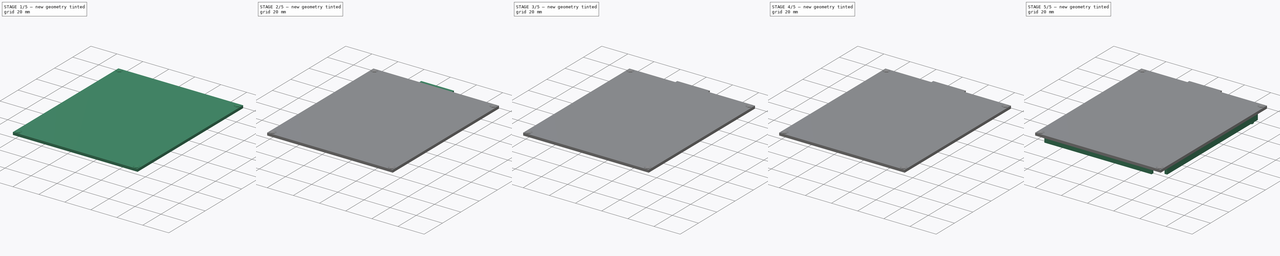
[diagram: build sequence overview — one tinted view per stage of 5, left to right]
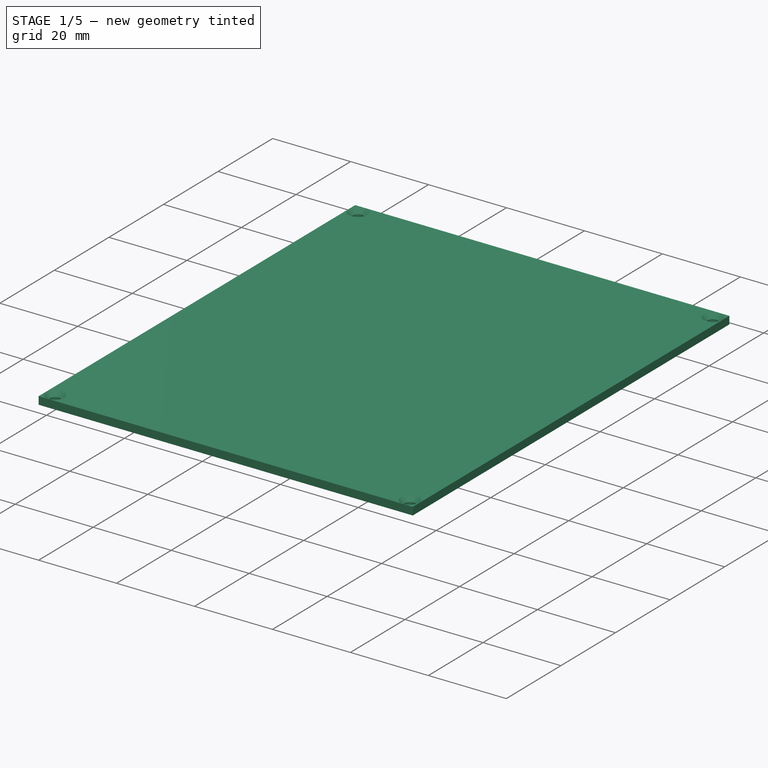
[diagram: stage 1 of 5 — iso view after this stage's code; geometry added in this stage tinted green]
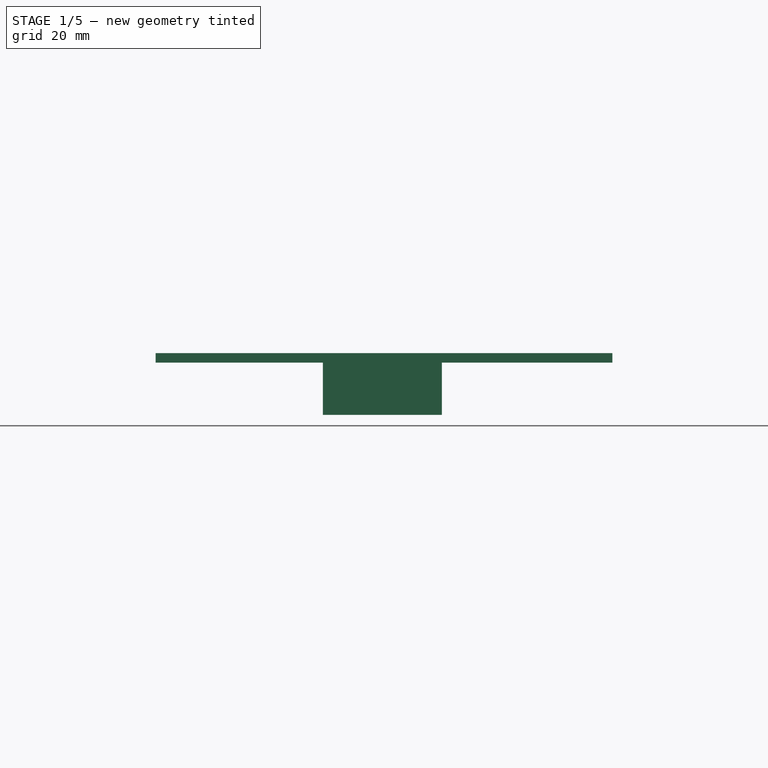
[diagram: stage 1 of 5 — front view after this stage's code; geometry added in this stage tinted green]
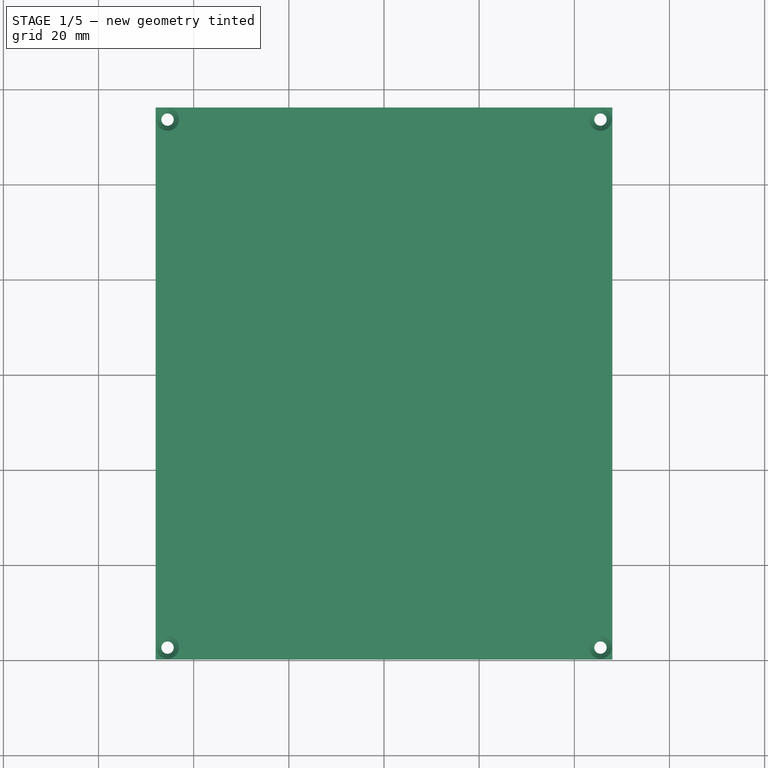
[diagram: stage 1 of 5 — top view after this stage's code; geometry added in this stage tinted green]
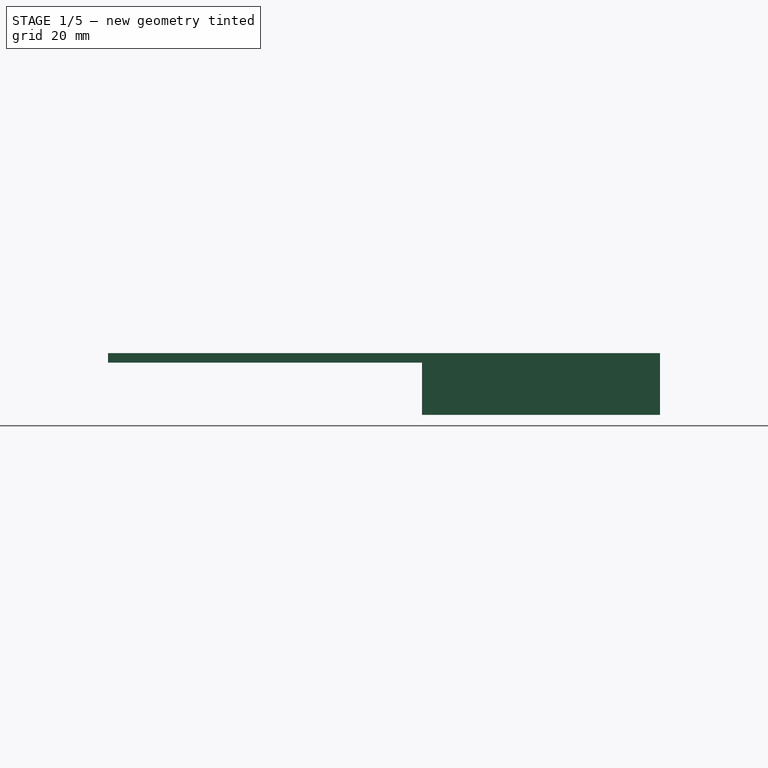
[diagram: stage 1 of 5 — right view after this stage's code; geometry added in this stage tinted green]
FCSTD DOCUMENT  (FreeCAD 0.17R13528 (Git))
Label: macro_keys-BOTTOM_V2
License: All rights reserved
LicenseURL: http://en.wikipedia.org/wiki/All_rights_reserved
objects: Sketcher::SketchObject×17, PartDesign::Pad×12, PartDesign::Pocket×5, PartDesign::Chamfer×1, PartDesign::Body×1
note: 53 computed .brp shape members not serialized (recipe doc carries the construction recipe); baked Part::Feature solids carry a one-line shape summary decoded from their .brp

FEATURE [Sketcher::SketchObject] Sketch
  MapMode = 5
  Support = -> [XY_Plane]
  sketch-geometry (4):
    g0: LineSegment StartX=-48 StartY=116 StartZ=0 EndX=48 EndY=116 EndZ=0
    g1: LineSegment StartX=48 StartY=116 StartZ=0 EndX=48 EndY=0 EndZ=0
    g2: LineSegment StartX=48 StartY=0 StartZ=0 EndX=-48 EndY=0 EndZ=0
    g3: LineSegment StartX=-48 StartY=0 StartZ=0 EndX=-48 EndY=116 EndZ=0
  constraints (12):
    c: Coincident(g0,g1)
    c: Coincident(g1,g2)
    c: Coincident(g2,g3)
    c: Coincident(g3,g0)
    c: Horizontal(g0)
    c: Horizontal(g2)
    c: Vertical(g1)
    c: Vertical(g3)
    c: DistanceX(g0,g0) = 96
    c: DistanceX(g2,g-1) = 48
    c: DistanceY(g3,g3) = 116
    c: DistanceY(g2,g-1) = 0
FEATURE [PartDesign::Pad] Pad
  Length = 2
  Length2 = 100
  Profile = -> Sketch
  Type = 0
FEATURE [Sketcher::SketchObject] Sketch001
  ExternalGeometry = -> [Pad]
  MapMode = 5
  Placement = pos=(0,0,2) rot=(0,0,1;0rad)
  Support = -> [Pad]
  sketch-geometry (4):
    g0: Circle CenterX=-45.5 CenterY=113.5 CenterZ=0 NormalX=0 NormalY=0 NormalZ=1 AngleXU=0 Radius=1.3
    g1: Circle CenterX=45.5 CenterY=113.5 CenterZ=0 NormalX=0 NormalY=0 NormalZ=1 AngleXU=0 Radius=1.3
    g2: Circle CenterX=45.5 CenterY=2.5 CenterZ=0 NormalX=0 NormalY=0 NormalZ=1 AngleXU=0 Radius=1.3
    g3: Circle CenterX=-45.5 CenterY=2.5 CenterZ=0 NormalX=0 NormalY=0 NormalZ=1 AngleXU=0 Radius=1.3
  constraints (12):
    c: DistanceY(g0,g-4) = 2.5
    c: DistanceY(g1,g-6) = 2.5
    c: DistanceY(g-5,g3) = 2.5
    c: DistanceY(g-6,g2) = 2.5
    c: DistanceX(g-5,g3) = 2.5
    c: DistanceX(g2,g-6) = 2.5
    c: DistanceX(g1,g-6) = 2.5
    c: DistanceX(g-4,g0) = 2.5
    c: Radius(g0) = 1.3
    c: Radius(g1) = 1.3
    c: Radius(g2) = 1.3
    c: Radius(g3) = 1.3
FEATURE [PartDesign::Pocket] Pocket
  BaseFeature = -> Pad
  Length = 5
  Length2 = 100
  Profile = -> Sketch001
  Type = 1
FEATURE [PartDesign::Chamfer] Chamfer
  Base = -> Pocket [Edge18,Edge19,Edge20,Edge17]
  BaseFeature = -> Pocket
  Size = 1.1
FEATURE [Sketcher::SketchObject] Sketch003
  MapMode = 5
  Placement = pos=(0,0,0) rot=(1,0,0;3.14159rad)
  sketch-geometry (4):
    g0: LineSegment StartX=12.1547 StartY=-116 StartZ=0 EndX=-12.8453 EndY=-116 EndZ=0
    g1: LineSegment StartX=-12.8453 StartY=-116 StartZ=0 EndX=-12.8453 EndY=-66 EndZ=0
    g2: LineSegment StartX=-12.8453 StartY=-66 StartZ=0 EndX=12.1547 EndY=-66 EndZ=0
    g3: LineSegment StartX=12.1547 StartY=-66 StartZ=0 EndX=12.1547 EndY=-116 EndZ=0
  constraints (10):
    c: Coincident(g0,g1)
    c: Coincident(g1,g2)
    c: Coincident(g2,g3)
    c: Coincident(g3,g0)
    c: Horizontal(g0)
    c: Horizontal(g2)
    c: Vertical(g1)
    c: Vertical(g3)
    c: DistanceY(g3,g3) = 50
    c: DistanceX(g2,g2) = 25
FEATURE [PartDesign::Pad] Pad001
  BaseFeature = -> Chamfer
  Length = 11
  Length2 = 100
  Profile = -> Sketch003
  Type = 0
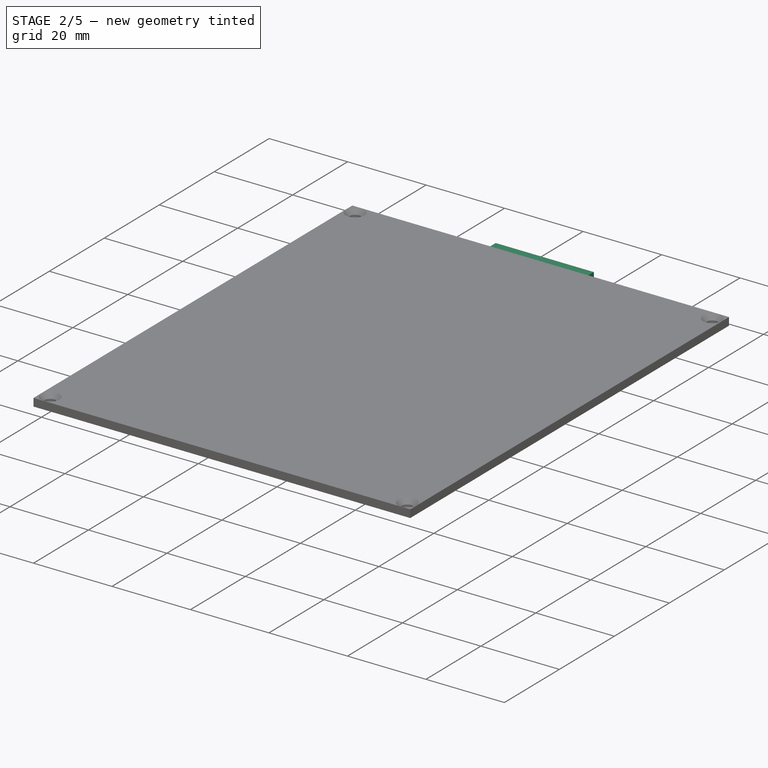
[diagram: stage 2 of 5 — iso view after this stage's code; geometry added in this stage tinted green]
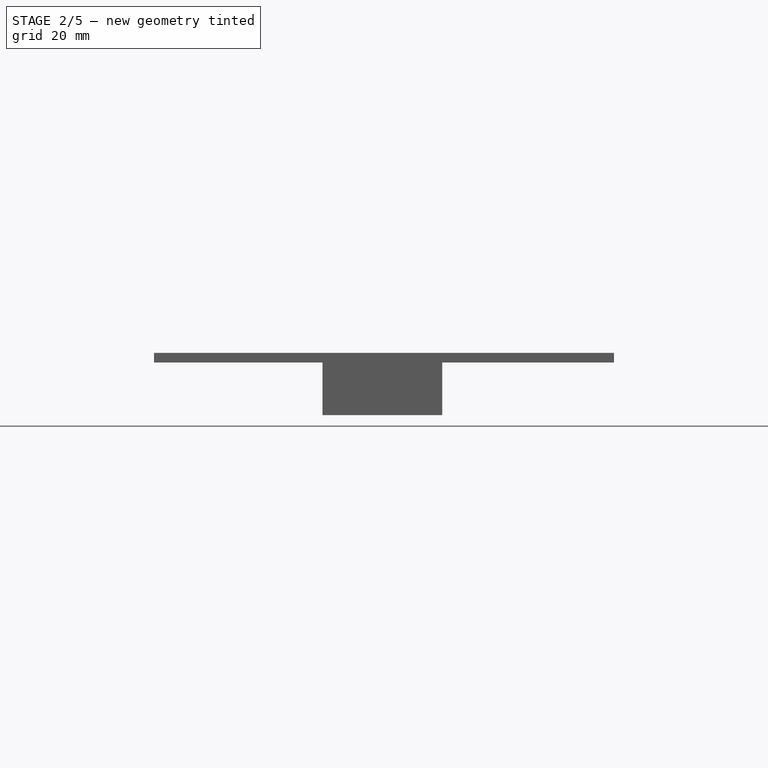
[diagram: stage 2 of 5 — front view after this stage's code; geometry added in this stage tinted green]
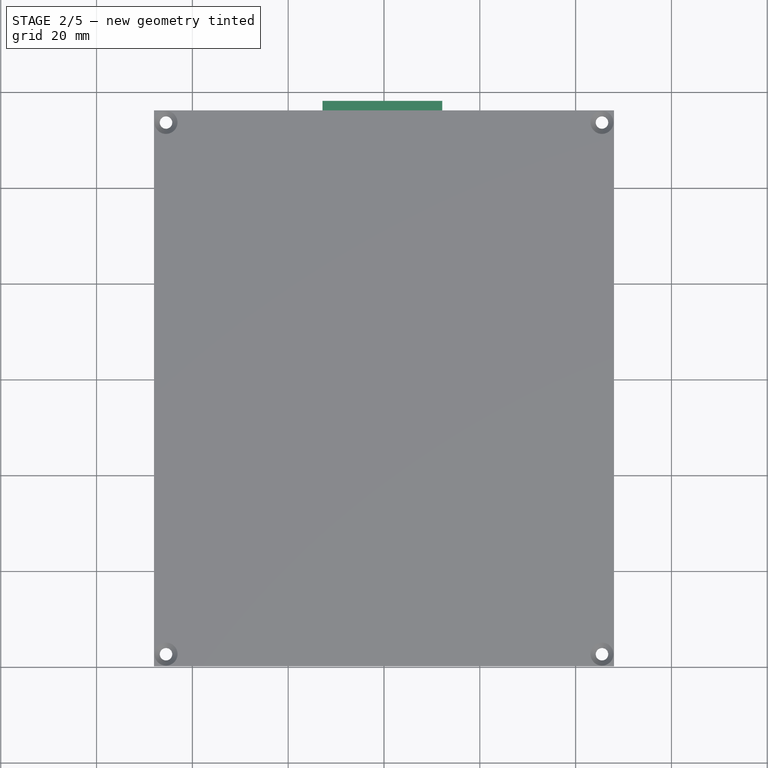
[diagram: stage 2 of 5 — top view after this stage's code; geometry added in this stage tinted green]
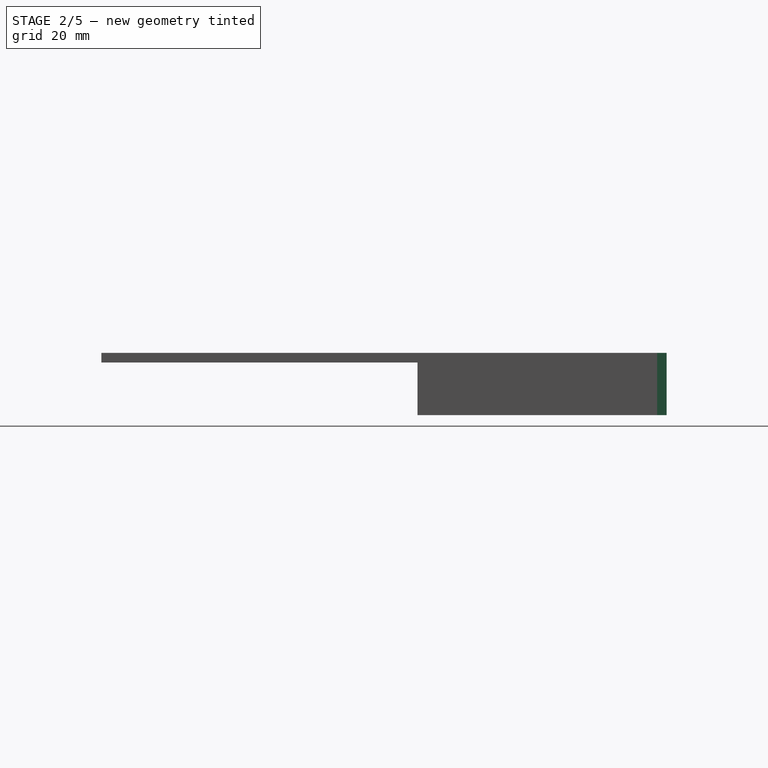
[diagram: stage 2 of 5 — right view after this stage's code; geometry added in this stage tinted green]
FEATURE [Sketcher::SketchObject] Sketch004
  ExternalGeometry = -> [Pad001]
  MapMode = 5
  Placement = pos=(0,116,0) rot=(0,0.707107,0.707107;3.14159rad)
  Support = -> [Pad001]
  sketch-geometry (4):
    g0: LineSegment StartX=-12.1547 StartY=-11 StartZ=0 EndX=12.8453 EndY=-11 EndZ=0
    g1: LineSegment StartX=12.8453 StartY=-11 StartZ=0 EndX=12.8453 EndY=2 EndZ=0
    g2: LineSegment StartX=12.8453 StartY=2 StartZ=0 EndX=-12.1547 EndY=2 EndZ=0
    g3: LineSegment StartX=-12.1547 StartY=2 StartZ=0 EndX=-12.1547 EndY=-11 EndZ=0
  constraints (11):
    c: Coincident(g0,g1)
    c: Coincident(g1,g2)
    c: Coincident(g2,g3)
    c: Coincident(g3,g0)
    c: Horizontal(g0)
    c: Horizontal(g2)
    c: Vertical(g1)
    c: Vertical(g3)
    c: PointOnObject(g1,g-3)
    c: Coincident(g0,g-4)
    c: Coincident(g0,g-4)
FEATURE [PartDesign::Pad] Pad002
  BaseFeature = -> Pad001
  Length = 2
  Length2 = 100
  Profile = -> Sketch004
  Type = 0
FEATURE [Sketcher::SketchObject] Sketch005
  ExternalGeometry = -> [Pad002]
  MapMode = 5
  Placement = pos=(0,0,-11) rot=(1,0,0;3.14159rad)
  Support = -> [Pad002]
  sketch-geometry (20):
    g0: LineSegment StartX=-9.75 StartY=-69 StartZ=0 EndX=-9.75 EndY=-104 EndZ=0
    g1: LineSegment StartX=-9.75 StartY=-104 StartZ=0 EndX=-4 EndY=-104 EndZ=0
    g2: LineSegment StartX=-4 StartY=-104 StartZ=0 EndX=-4 EndY=-106 EndZ=0
    g3: LineSegment StartX=-4 StartY=-106 StartZ=0 EndX=-6.25 EndY=-106 EndZ=0
    g4: LineSegment StartX=-6.25 StartY=-106 StartZ=0 EndX=-6.25 EndY=-118 EndZ=0
    g5: LineSegment StartX=-6.25 StartY=-118 StartZ=0 EndX=6.25 EndY=-118 EndZ=0
    g6: LineSegment StartX=6.25 StartY=-118 StartZ=0 EndX=6.25 EndY=-106 EndZ=0
    g7: LineSegment StartX=6.25 StartY=-106 StartZ=0 EndX=4 EndY=-106 EndZ=0
    g8: LineSegment StartX=4 StartY=-106 StartZ=0 EndX=4 EndY=-104 EndZ=0
    g9: LineSegment StartX=4 StartY=-104 StartZ=0 EndX=9.75 EndY=-104 EndZ=0
    g10: LineSegment StartX=9.75 StartY=-104 StartZ=0 EndX=9.75 EndY=-69 EndZ=0
    g11: LineSegment StartX=9.75 StartY=-69 StartZ=0 EndX=5.5 EndY=-69 EndZ=0
    g12: LineSegment StartX=5.5 StartY=-69 StartZ=0 EndX=5.5 EndY=-70.3 EndZ=0
    g13: LineSegment StartX=5.5 StartY=-70.3 StartZ=0 EndX=3.5 EndY=-70.3 EndZ=0
    g14: LineSegment StartX=3.5 StartY=-70.3 StartZ=0 EndX=3.5 EndY=-69 EndZ=0
    g15: LineSegment StartX=3.5 StartY=-69 StartZ=0 EndX=-3.5 EndY=-69 EndZ=0
    g16: LineSegment StartX=-3.5 StartY=-69 StartZ=0 EndX=-3.5 EndY=-70.3 EndZ=0
    g17: LineSegment StartX=-3.5 StartY=-70.3 StartZ=0 EndX=-5.5 EndY=-70.3 EndZ=0
    g18: LineSegment StartX=-5.5 StartY=-70.3 StartZ=0 EndX=-5.5 EndY=-69 EndZ=0
    g19: LineSegment StartX=-5.5 StartY=-69 StartZ=0 EndX=-9.75 EndY=-69 EndZ=0
  constraints (59):
    c: Vertical(g0)
    c: Coincident(g1,g0)
    c: Coincident(g2,g1)
    c: Vertical(g2)
    c: Horizontal(g1)
    c: Coincident(g3,g2)
    c: Horizontal(g3)
    c: Coincident(g4,g3)
    c: Vertical(g4)
    c: Coincident(g5,g4)
    c: Horizontal(g5)
    c: Coincident(g6,g5)
    c: Vertical(g6)
    c: Coincident(g7,g6)
    c: Horizontal(g7)
    c: Coincident(g8,g7)
    c: Vertical(g8)
    c: Coincident(g9,g8)
    c: Horizontal(g9)
    c: Coincident(g10,g9)
    c: Vertical(g10)
    c: DistanceX(g0,g10) = 19.5
    c: Symmetric(g0,g10,g-2)
    c: DistanceY(g0,g0) = 35
    c: DistanceY(g0,g-5) = 3
    c: Equal(g0,g10)
    c: DistanceX(g1,g8) = 8
    c: Symmetric(g8,g1,g-2)
    c: DistanceY(g2,g2) = 2
    c: Equal(g2,g8)
    c: DistanceX(g5,g5) = 12.5
    c: Symmetric(g5,g4,g-2)
    c: PointOnObject(g4,g-6)
    c: Coincident(g11,g10)
    c: Horizontal(g11)
    c: Coincident(g12,g11)
    c: Vertical(g12)
    c: Coincident(g13,g12)
    c: Horizontal(g13)
    c: Coincident(g14,g13)
    c: Vertical(g14)
    c: Coincident(g15,g14)
    c: Horizontal(g15)
    c: Coincident(g16,g15)
    c: Vertical(g16)
    c: Coincident(g17,g16)
    c: Horizontal(g17)
    c: Coincident(g18,g17)
    c: Vertical(g18)
    c: Coincident(g19,g18)
    c: Coincident(g19,g0)
    c: Horizontal(g19)
    c: DistanceX(g15,g15) = 7
    c: Symmetric(g14,g15,g-2)
    c: DistanceX(g17,g17) = 2
    c: DistanceX(g13,g13) = 2
    c: DistanceY(g18,g18) = 1.3
    c: Equal(g18,g14)
    c: DistanceY(g10,g14) = 0
FEATURE [PartDesign::Pocket] Pocket001
  BaseFeature = -> Pad002
  Length = 8.8
  Length2 = 100
  Profile = -> Sketch005
  Type = 0
FEATURE [Sketcher::SketchObject] Sketch008
  ExternalGeometry = -> [Pocket001]
  MapMode = 5
  Placement = pos=(0,0,-2.2) rot=(1,0,0;3.14159rad)
  Support = -> [Pocket001]
  sketch-geometry (4):
    g0: LineSegment StartX=-6.25 StartY=-106 StartZ=0 EndX=6.25 EndY=-106 EndZ=0
    g1: LineSegment StartX=6.25 StartY=-106 StartZ=0 EndX=6.25 EndY=-118 EndZ=0
    g2: LineSegment StartX=6.25 StartY=-118 StartZ=0 EndX=-6.25 EndY=-118 EndZ=0
    g3: LineSegment StartX=-6.25 StartY=-118 StartZ=0 EndX=-6.25 EndY=-106 EndZ=0
  constraints (10):
    c: Coincident(g0,g1)
    c: Coincident(g1,g2)
    c: Coincident(g2,g3)
    c: Coincident(g3,g0)
    c: Horizontal(g0)
    c: Horizontal(g2)
    c: Vertical(g1)
    c: Vertical(g3)
    c: Coincident(g0,g-3)
    c: Coincident(g1,g-4)
FEATURE [PartDesign::Pocket] Pocket004
  BaseFeature = -> Pocket001
  Length = 1.3
  Length2 = 100
  Profile = -> Sketch008
  Type = 0
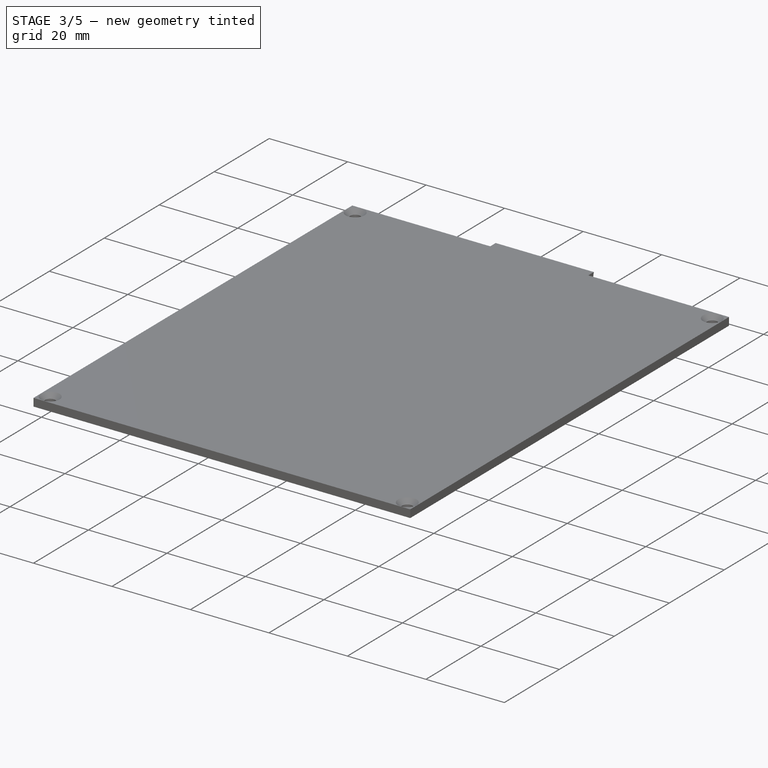
[diagram: stage 3 of 5 — iso view after this stage's code; geometry added in this stage tinted green]
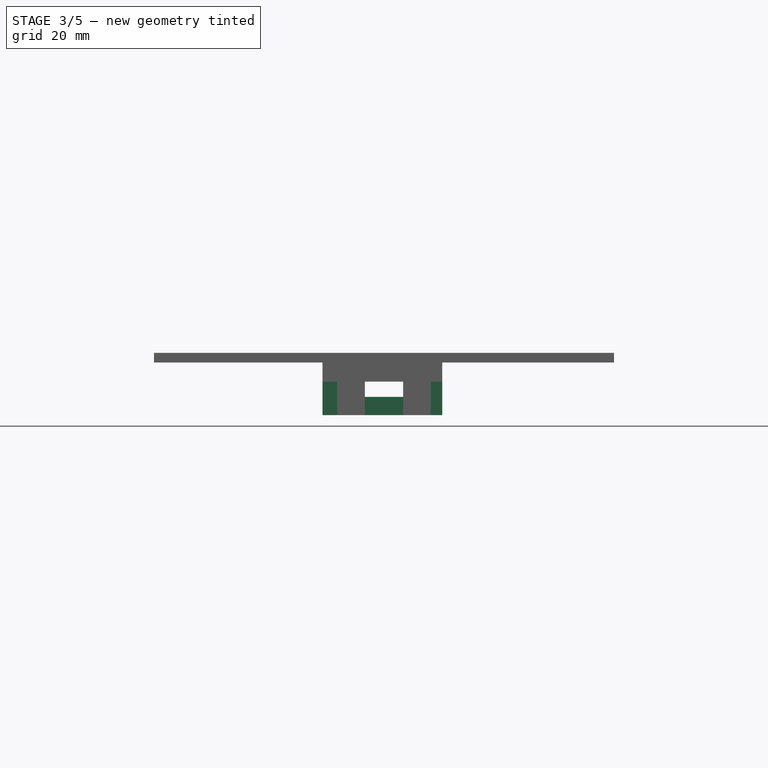
[diagram: stage 3 of 5 — front view after this stage's code; geometry added in this stage tinted green]
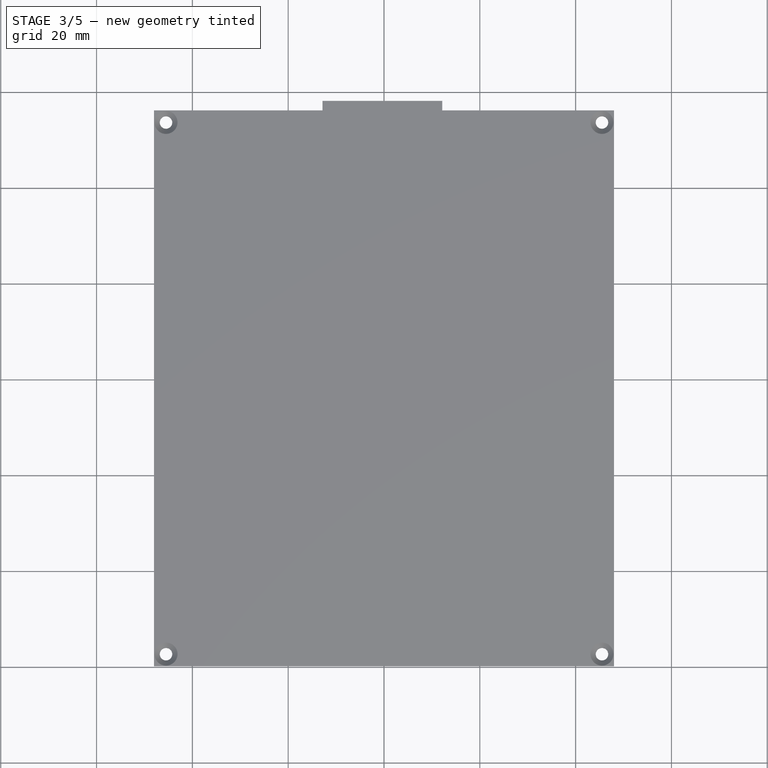
[diagram: stage 3 of 5 — top view after this stage's code; geometry added in this stage tinted green]
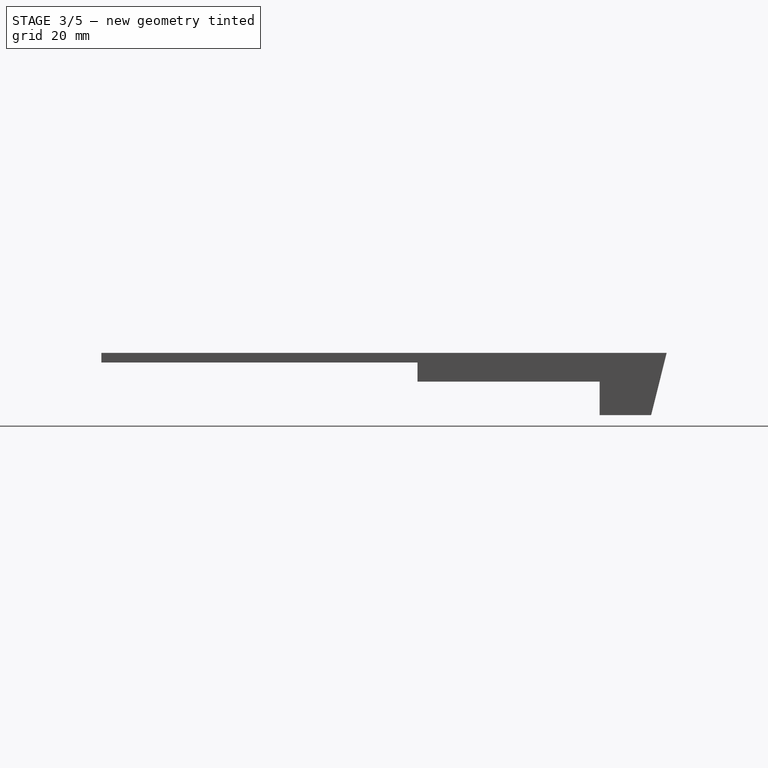
[diagram: stage 3 of 5 — right view after this stage's code; geometry added in this stage tinted green]
FEATURE [Sketcher::SketchObject] Sketch009
  ExternalGeometry = -> [Pocket004]
  MapMode = 5
  Placement = pos=(0,0,-11) rot=(1,0,0;3.14159rad)
  Support = -> [Pocket004]
  sketch-geometry (4):
    g0: LineSegment StartX=18.0821 StartY=-104 StartZ=0 EndX=-19.3692 EndY=-104 EndZ=0
    g1: LineSegment StartX=-19.3692 StartY=-104 StartZ=0 EndX=-19.3692 EndY=-63.8224 EndZ=0
    g2: LineSegment StartX=-19.3692 StartY=-63.8224 StartZ=0 EndX=18.0821 EndY=-63.8224 EndZ=0
    g3: LineSegment StartX=18.0821 StartY=-63.8224 StartZ=0 EndX=18.0821 EndY=-104 EndZ=0
  constraints (9):
    c: Coincident(g0,g1)
    c: Coincident(g1,g2)
    c: Coincident(g2,g3)
    c: Coincident(g3,g0)
    c: Horizontal(g0)
    c: Horizontal(g2)
    c: Vertical(g1)
    c: Vertical(g3)
    c: PointOnObject(g-3,g0)
FEATURE [PartDesign::Pocket] Pocket005
  BaseFeature = -> Pocket004
  Length = 7
  Length2 = 100
  Profile = -> Sketch009
  Type = 0
FEATURE [Sketcher::SketchObject] Sketch010
  ExternalGeometry = -> [Pocket005]
  MapMode = 5
  Placement = pos=(-6.25,0,0) rot=(0.57735,0.57735,0.57735;2.0944rad)
  Support = -> [Pocket005]
  sketch-geometry (4):
    g0: LineSegment StartX=118 StartY=-11 StartZ=0 EndX=106 EndY=-11 EndZ=0
    g1: LineSegment StartX=106 StartY=-11 StartZ=0 EndX=106 EndY=-9.8 EndZ=0
    g2: LineSegment StartX=106 StartY=-9.8 StartZ=0 EndX=118 EndY=-9.8 EndZ=0
    g3: LineSegment StartX=118 StartY=-9.8 StartZ=0 EndX=118 EndY=-11 EndZ=0
  constraints (11):
    c: Coincident(g0,g1)
    c: Coincident(g1,g2)
    c: Coincident(g2,g3)
    c: Coincident(g3,g0)
    c: Horizontal(g0)
    c: Horizontal(g2)
    c: Vertical(g1)
    c: Vertical(g3)
    c: Coincident(g0,g-4)
    c: Coincident(g0,g-3)
    c: DistanceY(g2,g-5) = 8.9
FEATURE [PartDesign::Pad] Pad003
  BaseFeature = -> Pocket005
  Length = 10
  Length2 = 100
  Profile = -> Sketch010
  Type = 2
FEATURE [Sketcher::SketchObject] Sketch011
  ExternalGeometry = -> [Pad003]
  MapMode = 5
  Placement = pos=(-4,0,0) rot=(0.57735,0.57735,0.57735;2.0944rad)
  Support = -> [Pad003]
  sketch-geometry (4):
    g0: LineSegment StartX=106 StartY=-11 StartZ=0 EndX=104 EndY=-11 EndZ=0
    g1: LineSegment StartX=104 StartY=-11 StartZ=0 EndX=104 EndY=-7.2 EndZ=0
    g2: LineSegment StartX=104 StartY=-7.2 StartZ=0 EndX=106 EndY=-7.2 EndZ=0
    g3: LineSegment StartX=106 StartY=-7.2 StartZ=0 EndX=106 EndY=-11 EndZ=0
  constraints (11):
    c: Coincident(g0,g1)
    c: Coincident(g1,g2)
    c: Coincident(g2,g3)
    c: Coincident(g3,g0)
    c: Horizontal(g0)
    c: Horizontal(g2)
    c: Vertical(g1)
    c: Vertical(g3)
    c: Coincident(g0,g-3)
    c: Coincident(g0,g-3)
    c: DistanceY(g1,g-4) = 5
FEATURE [PartDesign::Pad] Pad004
  BaseFeature = -> Pad003
  Length = 10
  Length2 = 100
  Profile = -> Sketch011
  Type = 2
FEATURE [Sketcher::SketchObject] Sketch012
  ExternalGeometry = -> [Pad004]
  MapMode = 5
  Placement = pos=(12.1547,0,0) rot=(0.57735,0.57735,0.57735;2.0944rad)
  Support = -> [Pad004]
  sketch-geometry (3):
    g0: LineSegment StartX=118 StartY=2 StartZ=0 EndX=113.889 EndY=-14.4865 EndZ=0
    g1: LineSegment StartX=113.889 StartY=-14.4865 StartZ=0 EndX=118 EndY=-14.4865 EndZ=0
    g2: LineSegment StartX=118 StartY=-14.4865 StartZ=0 EndX=118 EndY=2 EndZ=0
  constraints (7):
    c: Coincident(g0,g-4)
    c: Coincident(g1,g0)
    c: Horizontal(g1)
    c: Coincident(g2,g1)
    c: Coincident(g2,g0)
    c: Vertical(g2)
    c: Angle(g0,g2) = 0.244346
FEATURE [PartDesign::Pocket] Pocket006
  BaseFeature = -> Pad004
  Length = 5
  Length2 = 100
  Profile = -> Sketch012
  Type = 1
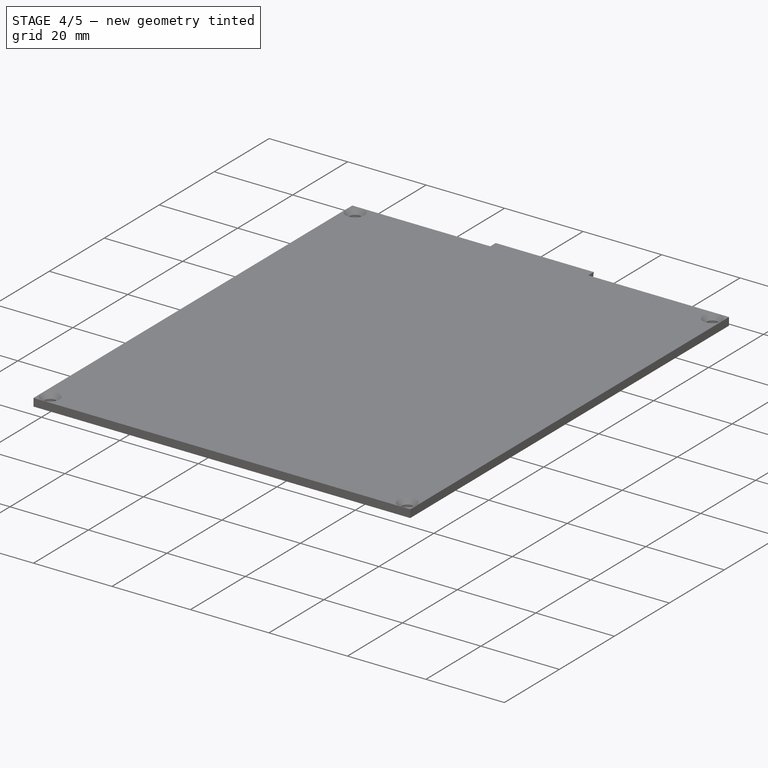
[diagram: stage 4 of 5 — iso view after this stage's code; geometry added in this stage tinted green]
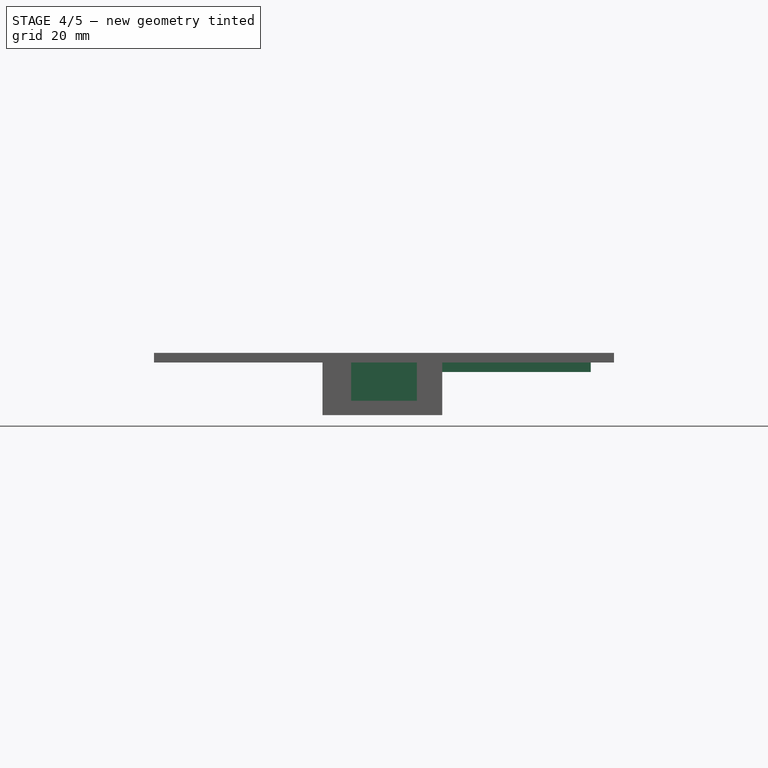
[diagram: stage 4 of 5 — front view after this stage's code; geometry added in this stage tinted green]
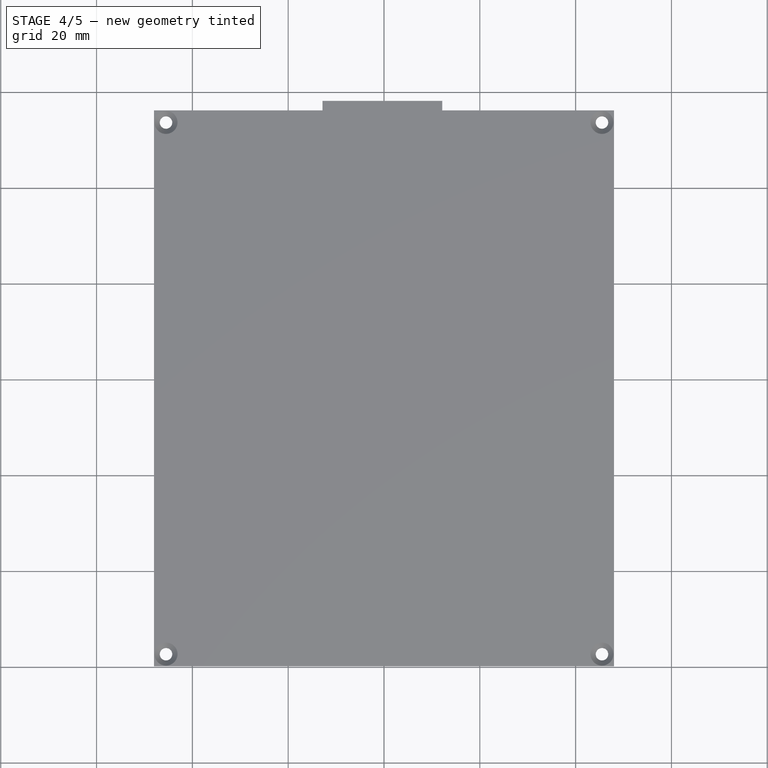
[diagram: stage 4 of 5 — top view after this stage's code; geometry added in this stage tinted green]
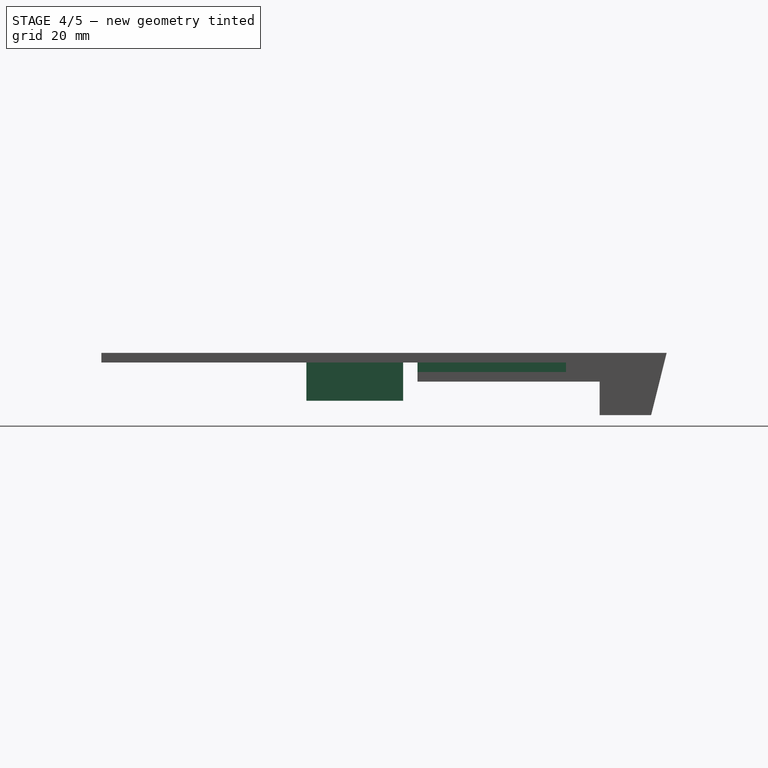
[diagram: stage 4 of 5 — right view after this stage's code; geometry added in this stage tinted green]
FEATURE [Sketcher::SketchObject] Sketch014
  ExternalGeometry = -> [Pocket006]
  MapMode = 5
  Placement = pos=(0,0,0) rot=(1,0,0;3.14159rad)
  Support = -> [Pocket006]
  sketch-geometry (20):
    g0: LineSegment StartX=-4.85 StartY=-42.8 StartZ=0 EndX=4.85 EndY=-42.8 EndZ=0
    g1: LineSegment StartX=4.85 StartY=-42.8 StartZ=0 EndX=4.85 EndY=-54 EndZ=0
    g2: LineSegment StartX=2.85 StartY=-56 StartZ=0 EndX=2.85 EndY=-44.8 EndZ=0
    g3: LineSegment StartX=2.85 StartY=-44.8 StartZ=0 EndX=-2.85 EndY=-44.8 EndZ=0
    g4: LineSegment StartX=-2.85 StartY=-44.8 StartZ=0 EndX=-2.85 EndY=-49.2 EndZ=0
    g5: LineSegment StartX=-2.85 StartY=-49.2 StartZ=0 EndX=-3.45 EndY=-49.2 EndZ=0
    g6: LineSegment StartX=-3.45 StartY=-49.2 StartZ=0 EndX=-3.45 EndY=-51 EndZ=0
    g7: LineSegment StartX=-3.45 StartY=-51 StartZ=0 EndX=-2.85 EndY=-51 EndZ=0
    g8: LineSegment StartX=-2.85 StartY=-51 StartZ=0 EndX=-2.85 EndY=-56 EndZ=0
    g9: LineSegment StartX=-4.85 StartY=-54 StartZ=0 EndX=-4.85 EndY=-42.8 EndZ=0
    g10: LineSegment StartX=4.85 StartY=-54 StartZ=0 EndX=6.85 EndY=-54 EndZ=0
    g11: LineSegment StartX=6.85 StartY=-54 StartZ=0 EndX=6.85 EndY=-63 EndZ=0
    g12: LineSegment StartX=6.85 StartY=-63 StartZ=0 EndX=4.85 EndY=-63 EndZ=0
    g13: LineSegment StartX=4.85 StartY=-63 StartZ=0 EndX=4.85 EndY=-56 EndZ=0
    g14: LineSegment StartX=4.85 StartY=-56 StartZ=0 EndX=2.85 EndY=-56 EndZ=0
    g15: LineSegment StartX=-4.85 StartY=-54 StartZ=0 EndX=-6.85 EndY=-54 EndZ=0
    g16: LineSegment StartX=-6.85 StartY=-54 StartZ=0 EndX=-6.85 EndY=-63 EndZ=0
    g17: LineSegment StartX=-6.85 StartY=-63 StartZ=0 EndX=-4.85 EndY=-63 EndZ=0
    g18: LineSegment StartX=-4.85 StartY=-63 StartZ=0 EndX=-4.85 EndY=-56 EndZ=0
    g19: LineSegment StartX=-4.85 StartY=-56 StartZ=0 EndX=-2.85 EndY=-56 EndZ=0
  constraints (59):
    c: Horizontal(g0)
    c: Coincident(g1,g0)
    c: Vertical(g1)
    c: Vertical(g2)
    c: Coincident(g4,g3)
    c: Vertical(g4)
    c: Coincident(g5,g4)
    c: Horizontal(g5)
    c: Coincident(g6,g5)
    c: Coincident(g7,g6)
    c: Horizontal(g7)
    c: Vertical(g6)
    c: Coincident(g8,g7)
    c: Vertical(g8)
    c: Coincident(g9,g0)
    c: Vertical(g9)
    c: DistanceX(g3,g3) = 5.7
    c: DistanceX(g2,g0) = 2
    c: DistanceY(g2,g0) = 2
    c: DistanceX(g0,g3) = 2
    c: DistanceY(g4,g4) = 4.4
    c: DistanceY(g6,g6) = 1.8
    c: DistanceX(g5,g5) = 0.6
    c: DistanceX(g7,g7) = 0.6
    c: DistanceY(g8,g3) = 11.2
    c: DistanceY(g2,g2) = 11.2
    c: Symmetric(g2,g8,g-2)
    c: Coincident(g10,g1)
    c: Horizontal(g10)
    c: Coincident(g11,g10)
    c: Vertical(g11)
    c: Coincident(g12,g11)
    c: Horizontal(g12)
    c: Coincident(g13,g12)
    c: Vertical(g13)
    c: Coincident(g14,g13)
    c: Horizontal(g14)
    c: DistanceX(g12,g12) = 2
    c: DistanceY(g13,g13) = 7
    c: Coincident(g3,g2)
    c: Coincident(g14,g2)
    c: DistanceY(g1,g1) = 11.2
    c: DistanceY(g-3,g2) = 10
    c: DistanceX(g13,g1) = 0
    c: Coincident(g15,g9)
    c: Horizontal(g15)
    c: Coincident(g16,g15)
    c: Vertical(g16)
    c: Coincident(g17,g16)
    c: Horizontal(g17)
    c: Vertical(g18)
    c: Coincident(g19,g18)
    c: Coincident(g19,g8)
    c: Horizontal(g19)
    c: DistanceX(g17,g17) = 2
    c: DistanceY(g9,g9) = 11.2
    c: Coincident(g18,g17)
    c: DistanceX(g18,g9) = 0
    c: Equal(g13,g18)
FEATURE [PartDesign::Pad] Pad005  label="motor-support"
  BaseFeature = -> Pocket006
  Length = 8
  Length2 = 100
  Profile = -> Sketch014
  Type = 0
FEATURE [Sketcher::SketchObject] Sketch015
  ExternalGeometry = -> [Pad005]
  MapMode = 5
  Placement = pos=(0,0,0) rot=(1,0,0;3.14159rad)
  Support = -> [Pad005]
  sketch-geometry (4):
    g0: LineSegment StartX=2.85 StartY=-44.8 StartZ=0 EndX=-2.85 EndY=-44.8 EndZ=0
    g1: LineSegment StartX=-2.85 StartY=-44.8 StartZ=0 EndX=-2.85 EndY=-56 EndZ=0
    g2: LineSegment StartX=-2.85 StartY=-56 StartZ=0 EndX=2.85 EndY=-56 EndZ=0
    g3: LineSegment StartX=2.85 StartY=-56 StartZ=0 EndX=2.85 EndY=-44.8 EndZ=0
  constraints (10):
    c: Coincident(g0,g1)
    c: Coincident(g1,g2)
    c: Coincident(g2,g3)
    c: Coincident(g3,g0)
    c: Horizontal(g0)
    c: Horizontal(g2)
    c: Vertical(g1)
    c: Vertical(g3)
    c: Coincident(g0,g-5)
    c: Coincident(g1,g-4)
FEATURE [PartDesign::Pad] Pad006
  BaseFeature = -> Pad005
  Length = 1.2
  Length2 = 100
  Profile = -> Sketch015
  Type = 0
FEATURE [Sketcher::SketchObject] Sketch016
  ExternalGeometry = -> [Pad006]
  MapMode = 5
  Placement = pos=(0,0,0) rot=(1,0,0;3.14159rad)
  Support = -> [Pad006]
  sketch-geometry (24):
    g0: LineSegment StartX=12.1547 StartY=-66 StartZ=0 EndX=43.1547 EndY=-66 EndZ=0
    g1: LineSegment StartX=43.1547 StartY=-66 StartZ=0 EndX=43.1547 EndY=-97 EndZ=0
    g2: LineSegment StartX=43.1547 StartY=-97 StartZ=0 EndX=12.1547 EndY=-97 EndZ=0
    g3: LineSegment StartX=12.1547 StartY=-97 StartZ=0 EndX=12.1547 EndY=-66 EndZ=0
    g4: LineSegment StartX=14.1547 StartY=-68 StartZ=0 EndX=14.1547 EndY=-81 EndZ=0
    g5: LineSegment StartX=14.1547 StartY=-81 StartZ=0 EndX=15.1547 EndY=-81 EndZ=0
    g6: LineSegment StartX=15.1547 StartY=-81 StartZ=0 EndX=15.1547 EndY=-82 EndZ=0
    g7: LineSegment StartX=15.1547 StartY=-82 StartZ=0 EndX=14.1547 EndY=-82 EndZ=0
    g8: LineSegment StartX=14.1547 StartY=-82 StartZ=0 EndX=14.1547 EndY=-95 EndZ=0
    g9: LineSegment StartX=14.1547 StartY=-95 StartZ=0 EndX=27.1547 EndY=-95 EndZ=0
    g10: LineSegment StartX=27.1547 StartY=-95 StartZ=0 EndX=27.1547 EndY=-94 EndZ=0
    g11: LineSegment StartX=27.1547 StartY=-94 StartZ=0 EndX=28.1547 EndY=-94 EndZ=0
    g12: LineSegment StartX=28.1547 StartY=-94 StartZ=0 EndX=28.1547 EndY=-95 EndZ=0
    g13: LineSegment StartX=28.1547 StartY=-95 StartZ=0 EndX=41.1547 EndY=-95 EndZ=0
    g14: LineSegment StartX=41.1547 StartY=-95 StartZ=0 EndX=41.1547 EndY=-82 EndZ=0
    g15: LineSegment StartX=41.1547 StartY=-82 StartZ=0 EndX=40.1547 EndY=-82 EndZ=0
    g16: LineSegment StartX=40.1547 StartY=-82 StartZ=0 EndX=40.1547 EndY=-81 EndZ=0
    g17: LineSegment StartX=40.1547 StartY=-81 StartZ=0 EndX=41.1547 EndY=-81 EndZ=0
    g18: LineSegment StartX=41.1547 StartY=-81 StartZ=0 EndX=41.1547 EndY=-68 EndZ=0
    g19: LineSegment StartX=41.1547 StartY=-68 StartZ=0 EndX=28.1547 EndY=-68 EndZ=0
    g20: LineSegment StartX=28.1547 StartY=-68 StartZ=0 EndX=28.1547 EndY=-69 EndZ=0
    g21: LineSegment StartX=28.1547 StartY=-69 StartZ=0 EndX=27.1547 EndY=-69 EndZ=0
    g22: LineSegment StartX=27.1547 StartY=-69 StartZ=0 EndX=27.1547 EndY=-68 EndZ=0
    g23: LineSegment StartX=27.1547 StartY=-68 StartZ=0 EndX=14.1547 EndY=-68 EndZ=0
  constraints (72):
    c: Coincident(g0,g1)
    c: Coincident(g1,g2)
    c: Coincident(g2,g3)
    c: Coincident(g3,g0)
    c: Horizontal(g0)
    c: Horizontal(g2)
    c: Vertical(g1)
    c: Vertical(g3)
    c: Vertical(g4)
    c: Coincident(g5,g4)
    c: Horizontal(g5)
    c: Coincident(g6,g5)
    c: Vertical(g6)
    c: Coincident(g7,g6)
    c: Horizontal(g7)
    c: Coincident(g8,g7)
    c: Vertical(g8)
    c: Coincident(g9,g8)
    c: Horizontal(g9)
    c: Coincident(g10,g9)
    c: Vertical(g10)
    c: Coincident(g11,g10)
    c: Horizontal(g11)
    c: Coincident(g12,g11)
    c: Vertical(g12)
    c: Coincident(g13,g12)
    c: Horizontal(g13)
    c: Coincident(g14,g13)
    c: Vertical(g14)
    c: Coincident(g15,g14)
    c: Horizontal(g15)
    c: Coincident(g16,g15)
    c: Vertical(g16)
    c: Coincident(g17,g16)
    c: Horizontal(g17)
    c: Coincident(g18,g17)
    c: Vertical(g18)
    c: Coincident(g19,g18)
    c: Horizontal(g19)
    c: Coincident(g20,g19)
    c: Vertical(g20)
    c: Coincident(g21,g20)
    c: Horizontal(g21)
    c: Coincident(g22,g21)
    c: Vertical(g22)
    c: Coincident(g23,g22)
    c: Coincident(g23,g4)
    c: Horizontal(g23)
    c: DistanceY(g10,g21) = 25
    c: DistanceX(g5,g16) = 25
    c: DistanceY(g1,g13) = 2
    c: DistanceX(g13,g1) = 2
    c: DistanceX(g18,g0) = 2
    c: DistanceY(g18,g0) = 2
    c: DistanceX(g0,g4) = 2
    c: DistanceY(g4,g0) = 2
    c: DistanceX(g2,g8) = 2
    c: DistanceY(g2,g8) = 2
    c: DistanceY(g4,g4) = 13
    c: DistanceY(g8,g8) = 13
    c: DistanceX(g23,g23) = 13
    c: DistanceX(g19,g19) = 13
    c: DistanceY(g18,g18) = 13
    c: DistanceY(g14,g14) = 13
    c: DistanceX(g9,g9) = 13
    c: DistanceX(g13,g13) = 13
    c: DistanceY(g12,g12) = 1
    c: DistanceX(g15,g15) = 1
    c: DistanceY(g20,g20) = 1
    c: DistanceX(g7,g7) = 1
    c: DistanceX(g-3,g0) = 0
    c: DistanceY(g0,g-3) = 0
FEATURE [PartDesign::Pad] Pad007  label="PCB-support"
  BaseFeature = -> Pad006
  Length = 2
  Length2 = 100
  Profile = -> Sketch016
  Type = 0
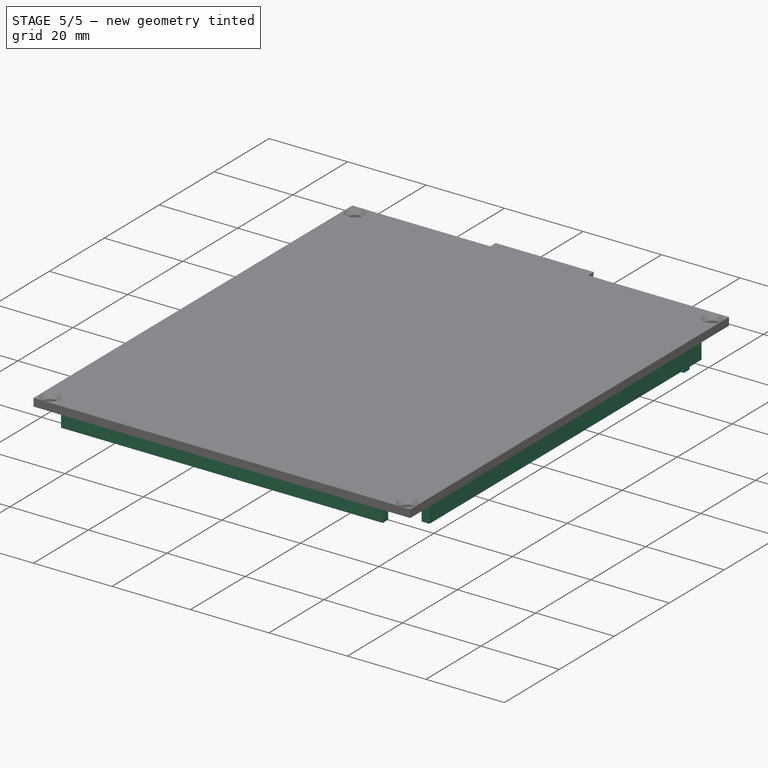
[diagram: stage 5 of 5 — iso view after this stage's code; geometry added in this stage tinted green]
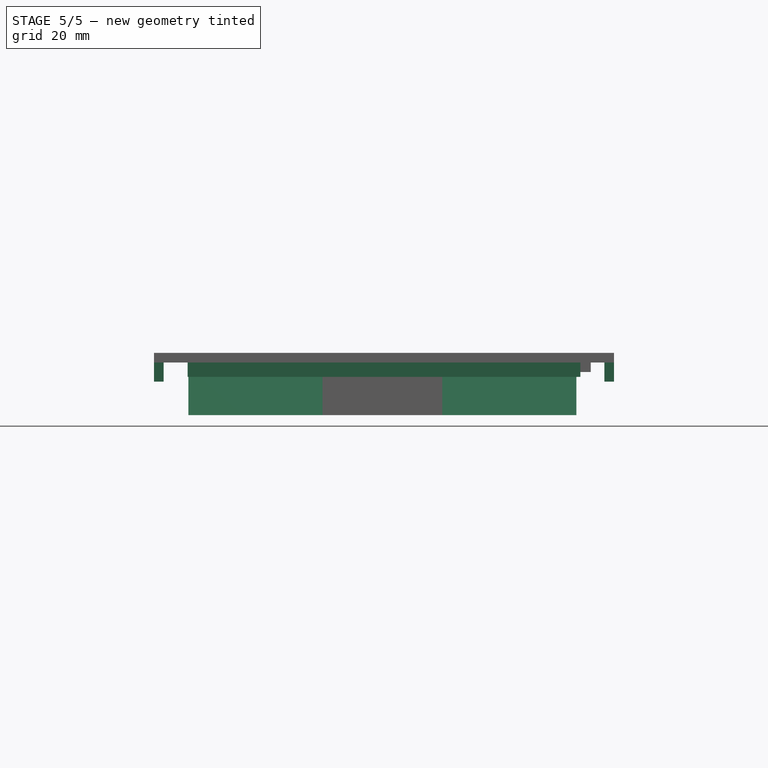
[diagram: stage 5 of 5 — front view after this stage's code; geometry added in this stage tinted green]
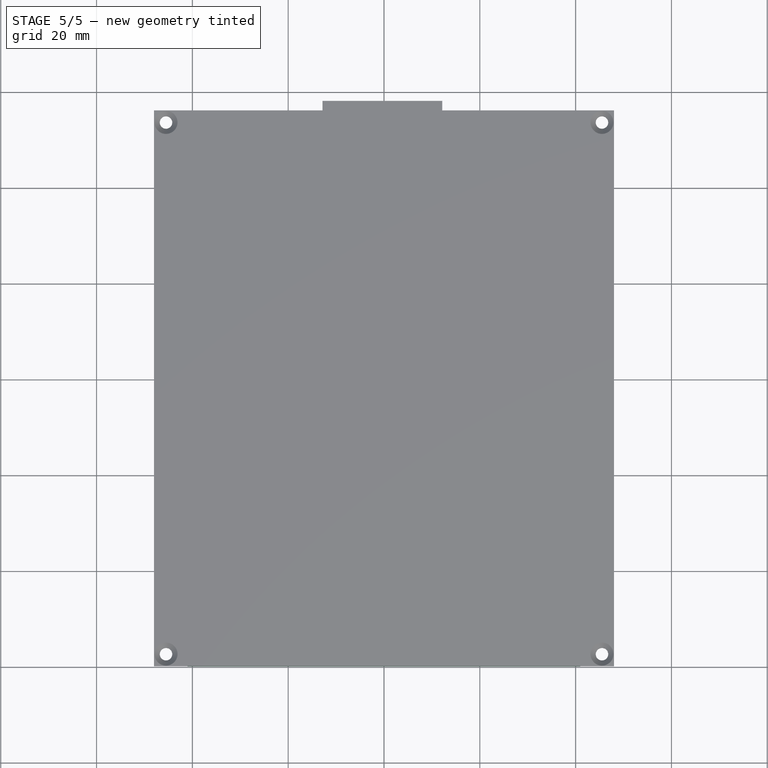
[diagram: stage 5 of 5 — top view after this stage's code; geometry added in this stage tinted green]
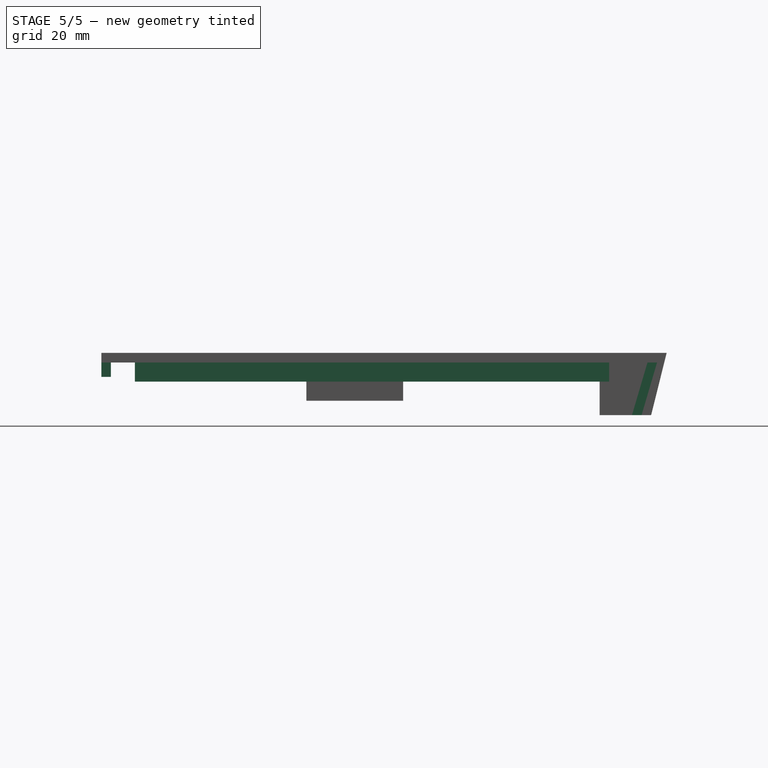
[diagram: stage 5 of 5 — right view after this stage's code; geometry added in this stage tinted green]
FEATURE [Sketcher::SketchObject] Sketch017
  ExternalGeometry = -> [Pad007]
  MapMode = 5
  Placement = pos=(0,0,0) rot=(1,0,0;3.14159rad)
  Support = -> [Pad007]
  sketch-geometry (4):
    g0: LineSegment StartX=41 StartY=-2 StartZ=0 EndX=-41 EndY=-2 EndZ=0
    g1: LineSegment StartX=-41 StartY=-2 StartZ=0 EndX=-41 EndY=0 EndZ=0
    g2: LineSegment StartX=-41 StartY=0 StartZ=0 EndX=41 EndY=0 EndZ=0
    g3: LineSegment StartX=41 StartY=0 StartZ=0 EndX=41 EndY=-2 EndZ=0
  constraints (12):
    c: Coincident(g0,g1)
    c: Coincident(g1,g2)
    c: Coincident(g2,g3)
    c: Coincident(g3,g0)
    c: Horizontal(g0)
    c: Horizontal(g2)
    c: Vertical(g1)
    c: Vertical(g3)
    c: PointOnObject(g1,g-3)
    c: DistanceX(g-4,g1) = 7
    c: DistanceX(g2,g-5) = 7
    c: DistanceY(g3,g3) = 2
FEATURE [PartDesign::Pad] Pad008
  BaseFeature = -> Pad007
  Length = 3
  Length2 = 100
  Profile = -> Sketch017
  Type = 0
FEATURE [Sketcher::SketchObject] Sketch018
  ExternalGeometry = -> [Pad008]
  MapMode = 5
  Placement = pos=(12.1547,0,0) rot=(0.57735,0.57735,0.57735;2.0944rad)
  Support = -> [Pad008]
  sketch-geometry (4):
    g0: LineSegment StartX=116 StartY=0 StartZ=0 EndX=112.759 EndY=-11 EndZ=0
    g1: LineSegment StartX=116 StartY=0 StartZ=0 EndX=114 EndY=0 EndZ=0
    g2: LineSegment StartX=112.759 StartY=-11 StartZ=0 EndX=110.759 EndY=-11 EndZ=0
    g3: LineSegment StartX=110.759 StartY=-11 StartZ=0 EndX=114 EndY=0 EndZ=0
  constraints (11):
    c: Coincident(g0,g-3)
    c: PointOnObject(g0,g-4)
    c: DistanceX(g0,g-4) = 2
    c: Horizontal(g2)
    c: Coincident(g3,g2)
    c: Coincident(g3,g1)
    c: Coincident(g1,g0)
    c: Coincident(g2,g0)
    c: PointOnObject(g1,g-3)
    c: DistanceX(g2,g2) = 2
    c: DistanceX(g1,g1) = 2
FEATURE [PartDesign::Pad] Pad009
  BaseFeature = -> Pad008
  Length = 28
  Length2 = 100
  Profile = -> Sketch018
  Type = 0
FEATURE [Sketcher::SketchObject] Sketch019
  ExternalGeometry = -> [Pad009]
  MapMode = 5
  Placement = pos=(-12.8453,0,0) rot=(0.57735,-0.57735,-0.57735;2.0944rad)
  Support = -> [Pad009]
  sketch-geometry (4):
    g0: LineSegment StartX=-116 StartY=0 StartZ=0 EndX=-112.759 EndY=-11 EndZ=0
    g1: LineSegment StartX=-112.759 StartY=-11 StartZ=0 EndX=-110.759 EndY=-11 EndZ=0
    g2: LineSegment StartX=-110.759 StartY=-11 StartZ=0 EndX=-114 EndY=0 EndZ=0
    g3: LineSegment StartX=-114 StartY=0 StartZ=0 EndX=-116 EndY=0 EndZ=0
  constraints (11):
    c: Coincident(g0,g-4)
    c: Coincident(g1,g0)
    c: Coincident(g2,g1)
    c: Coincident(g3,g2)
    c: Coincident(g3,g0)
    c: PointOnObject(g0,g-3)
    c: DistanceX(g-3,g0) = 2
    c: PointOnObject(g1,g-3)
    c: DistanceX(g1,g1) = 2
    c: PointOnObject(g2,g-4)
    c: DistanceX(g3,g3) = 2
FEATURE [PartDesign::Pad] Pad010
  BaseFeature = -> Pad009
  Length = 28
  Length2 = 100
  Profile = -> Sketch019
  Type = 0
FEATURE [Sketcher::SketchObject] Sketch020
  ExternalGeometry = -> [Pad010]
  MapMode = 5
  Placement = pos=(0,0,0) rot=(1,0,0;3.14159rad)
  Support = -> [Pad010]
  sketch-geometry (8):
    g0: LineSegment StartX=-48 StartY=-7 StartZ=0 EndX=-46 EndY=-7 EndZ=0
    g1: LineSegment StartX=-46 StartY=-7 StartZ=0 EndX=-46 EndY=-106 EndZ=0
    g2: LineSegment StartX=-46 StartY=-106 StartZ=0 EndX=-48 EndY=-106 EndZ=0
    g3: LineSegment StartX=-48 StartY=-106 StartZ=0 EndX=-48 EndY=-7 EndZ=0
    g4: LineSegment StartX=46 StartY=-7 StartZ=0 EndX=48 EndY=-7 EndZ=0
    g5: LineSegment StartX=48 StartY=-7 StartZ=0 EndX=48 EndY=-106 EndZ=0
    g6: LineSegment StartX=48 StartY=-106 StartZ=0 EndX=46 EndY=-106 EndZ=0
    g7: LineSegment StartX=46 StartY=-106 StartZ=0 EndX=46 EndY=-7 EndZ=0
  constraints (24):
    c: Coincident(g0,g1)
    c: Coincident(g1,g2)
    c: Coincident(g2,g3)
    c: Coincident(g3,g0)
    c: Horizontal(g0)
    c: Horizontal(g2)
    c: Vertical(g1)
    c: Vertical(g3)
    c: Coincident(g4,g5)
    c: Coincident(g5,g6)
    c: Coincident(g6,g7)
    c: Coincident(g7,g4)
    c: Horizontal(g4)
    c: Horizontal(g6)
    c: Vertical(g5)
    c: Vertical(g7)
    c: PointOnObject(g2,g-3)
    c: DistanceY(g-3,g2) = 10
    c: DistanceY(g0,g-3) = 7
    c: DistanceX(g0,g0) = 2
    c: PointOnObject(g5,g-4)
    c: DistanceY(g-4,g5) = 10
    c: DistanceY(g4,g-4) = 7
    c: DistanceX(g4,g4) = 2
FEATURE [PartDesign::Pad] Pad011
  BaseFeature = -> Pad010
  Length = 4
  Length2 = 100
  Profile = -> Sketch020
  Type = 0
FEATURE [PartDesign::Body] Body
  Group = -> [Sketch,Pad,Sketch001,Pocket,Chamfer,Sketch003,Pad001,Sketch004,Pad002,Sketch005,Pocket001,Sketch008,Pocket004,Sketch009,Pocket005,Sketch010,Pad003,Sketch011,Pad004,Sketch012,Pocket006,Sketch014,Pad005,Sketch015,Pad006,Sketch016,Pad007,Sketch017,Pad008,Sketch018,Pad009,Sketch019,Pad010,Sketch020,Pad011]
  Origin = -> Origin
  Tip = -> Pad011
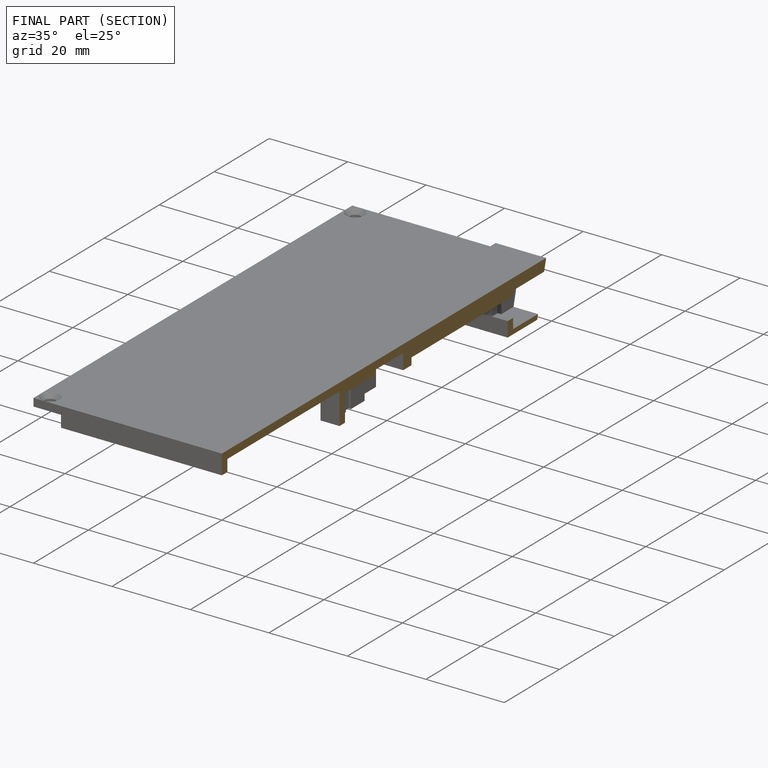
[diagram: finished part — half-section view (interior)]
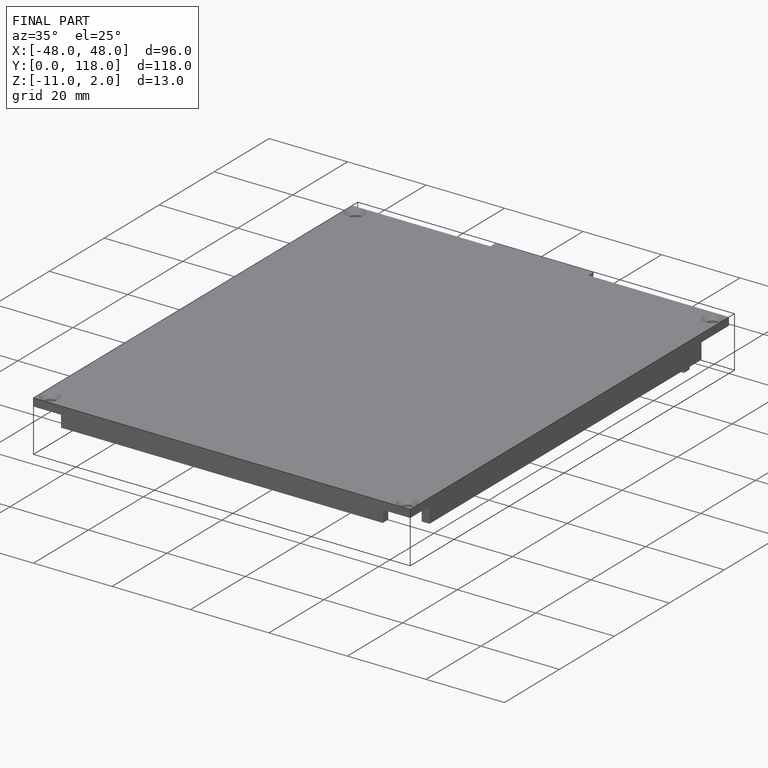
[diagram: finished part — iso view with bounding-box wireframe]
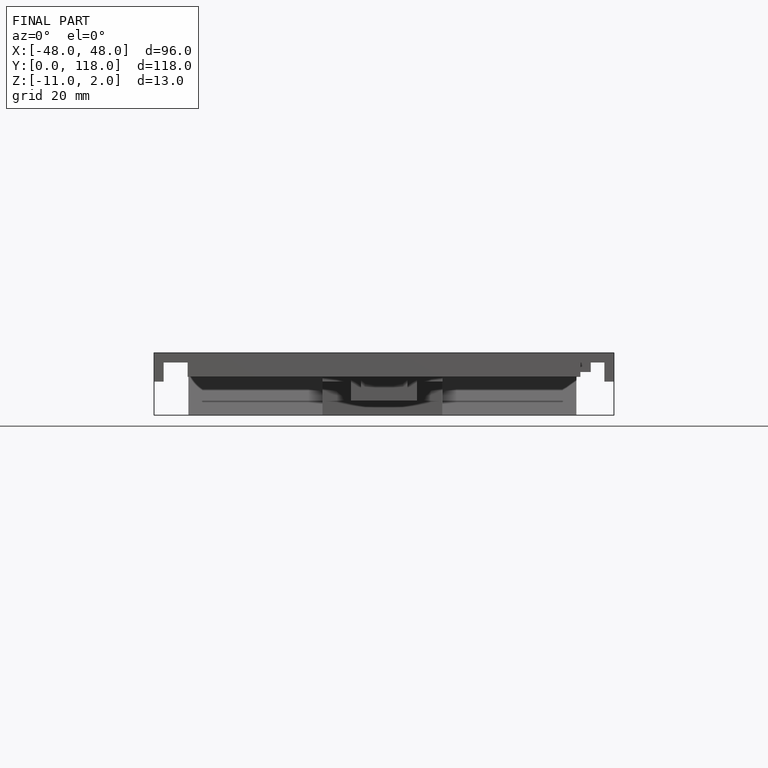
[diagram: finished part — front view with bounding-box wireframe]
